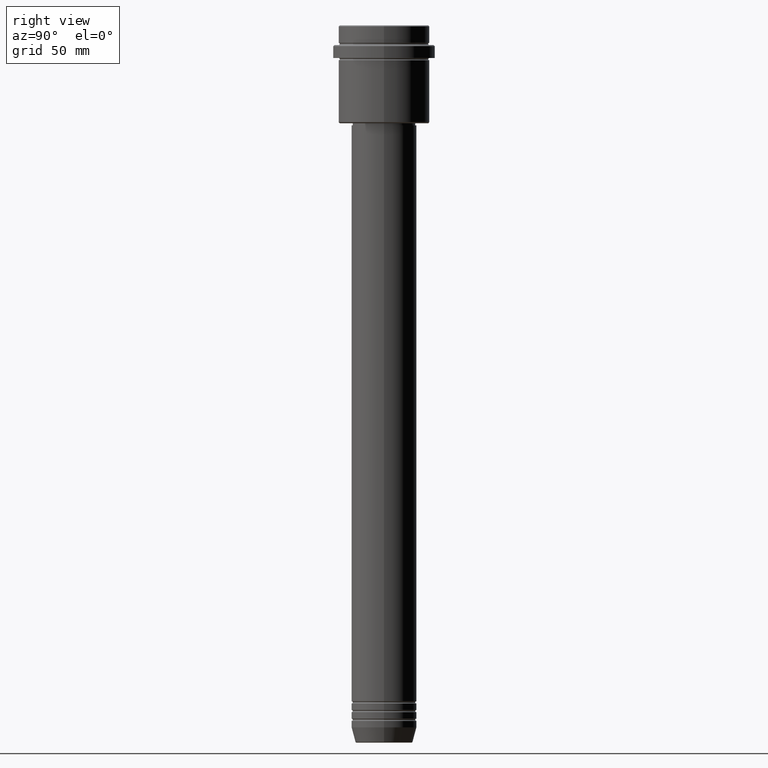
[diagram: clean part render]
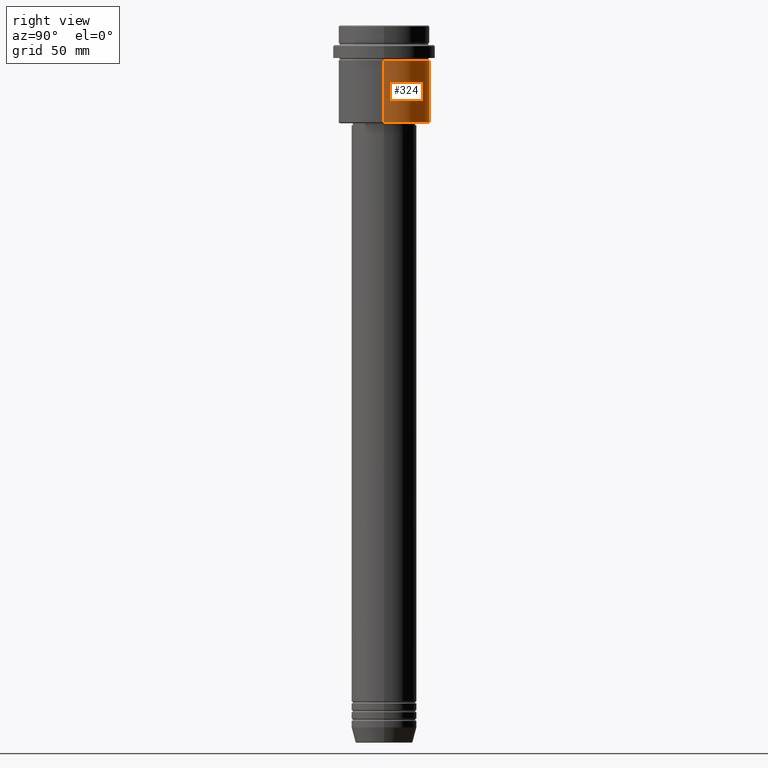
[diagram: same view with one face highlighted and labeled with its STEP entity id]
A machine part, right view. The second image highlights one B-rep face of the part: STEP entity #324.
In plain terms, the highlighted cylindrical surface (partial cylindrical patch) has radius 21 mm, axis along (-0, -0, 1).
Its self-contained STEP definition (entity closure, byte-faithful):
#37 = VERTEX_POINT ( 'NONE', #1254 ) ;
#42 = LINE ( 'NONE', #1152, #812 ) ;
#50 = VERTEX_POINT ( 'NONE', #67 ) ;
#67 = CARTESIAN_POINT ( 'NONE',  ( -21.00000000000000000, 2.571758278209441661E-15, -44.50000000000001421 ) ) ;
#159 = CARTESIAN_POINT ( 'NONE',  ( 0.000000000000000000, 0.000000000000000000, 0.000000000000000000 ) ) ;
#175 = AXIS2_PLACEMENT_3D ( 'NONE', #474, #397, #1185 ) ;
#184 = VERTEX_POINT ( 'NONE', #641 ) ;
#197 = EDGE_CURVE ( 'NONE', #50, #37, #1195, .T. ) ;
#313 = VERTEX_POINT ( 'NONE', #798 ) ;
#324 = ADVANCED_FACE ( 'NONE', ( #1247 ), #475, .T. ) ;
#351 = CARTESIAN_POINT ( 'NONE',  ( 0.000000000000000000, 0.000000000000000000, -16.00000000000000355 ) ) ;
#397 = DIRECTION ( 'NONE',  ( -0.000000000000000000, -0.000000000000000000, 1.000000000000000000 ) ) ;
#454 = AXIS2_PLACEMENT_3D ( 'NONE', #351, #1350, #912 ) ;
#470 = DIRECTION ( 'NONE',  ( -0.000000000000000000, -0.000000000000000000, 1.000000000000000000 ) ) ;
#474 = CARTESIAN_POINT ( 'NONE',  ( 0.000000000000000000, 0.000000000000000000, -44.50000000000001421 ) ) ;
#475 = CYLINDRICAL_SURFACE ( 'NONE', #691, 21.00000000000000000 ) ;
#505 = ORIENTED_EDGE ( 'NONE', *, *, #972, .F. ) ;
#561 = CARTESIAN_POINT ( 'NONE',  ( -21.00000000000000000, 2.571758278209441661E-15, 0.000000000000000000 ) ) ;
#575 = EDGE_CURVE ( 'NONE', #313, #50, #1041, .T. ) ;
#579 = ORIENTED_EDGE ( 'NONE', *, *, #575, .T. ) ;
#615 = EDGE_LOOP ( 'NONE', ( #579, #728, #990, #505 ) ) ;
#641 = CARTESIAN_POINT ( 'NONE',  ( 21.00000000000000000, 0.000000000000000000, -16.00000000000000355 ) ) ;
#691 = AXIS2_PLACEMENT_3D ( 'NONE', #159, #810, #923 ) ;
#728 = ORIENTED_EDGE ( 'NONE', *, *, #197, .T. ) ;
#798 = CARTESIAN_POINT ( 'NONE',  ( 21.00000000000000000, 0.000000000000000000, -44.50000000000001421 ) ) ;
#810 = DIRECTION ( 'NONE',  ( -0.000000000000000000, -0.000000000000000000, 1.000000000000000000 ) ) ;
#812 = VECTOR ( 'NONE', #470, 1000.000000000000000 ) ;
#901 = VECTOR ( 'NONE', #1206, 1000.000000000000000 ) ;
#912 = DIRECTION ( 'NONE',  ( 1.000000000000000000, 0.000000000000000000, 0.000000000000000000 ) ) ;
#923 = DIRECTION ( 'NONE',  ( 1.000000000000000000, 0.000000000000000000, 0.000000000000000000 ) ) ;
#972 = EDGE_CURVE ( 'NONE', #313, #184, #42, .T. ) ;
#990 = ORIENTED_EDGE ( 'NONE', *, *, #1050, .F. ) ;
#1041 = CIRCLE ( 'NONE', #175, 21.00000000000000000 ) ;
#1050 = EDGE_CURVE ( 'NONE', #184, #37, #1266, .T. ) ;
#1152 = CARTESIAN_POINT ( 'NONE',  ( 21.00000000000000000, 0.000000000000000000, 0.000000000000000000 ) ) ;
#1185 = DIRECTION ( 'NONE',  ( -1.000000000000000000, 0.000000000000000000, 0.000000000000000000 ) ) ;
#1195 = LINE ( 'NONE', #561, #901 ) ;
#1206 = DIRECTION ( 'NONE',  ( -0.000000000000000000, -0.000000000000000000, 1.000000000000000000 ) ) ;
#1247 = FACE_OUTER_BOUND ( 'NONE', #615, .T. ) ;
#1254 = CARTESIAN_POINT ( 'NONE',  ( -21.00000000000000000, 2.571758278209441661E-15, -16.00000000000000355 ) ) ;
#1266 = CIRCLE ( 'NONE', #454, 21.00000000000000000 ) ;
#1350 = DIRECTION ( 'NONE',  ( -0.000000000000000000, -0.000000000000000000, 1.000000000000000000 ) ) ;